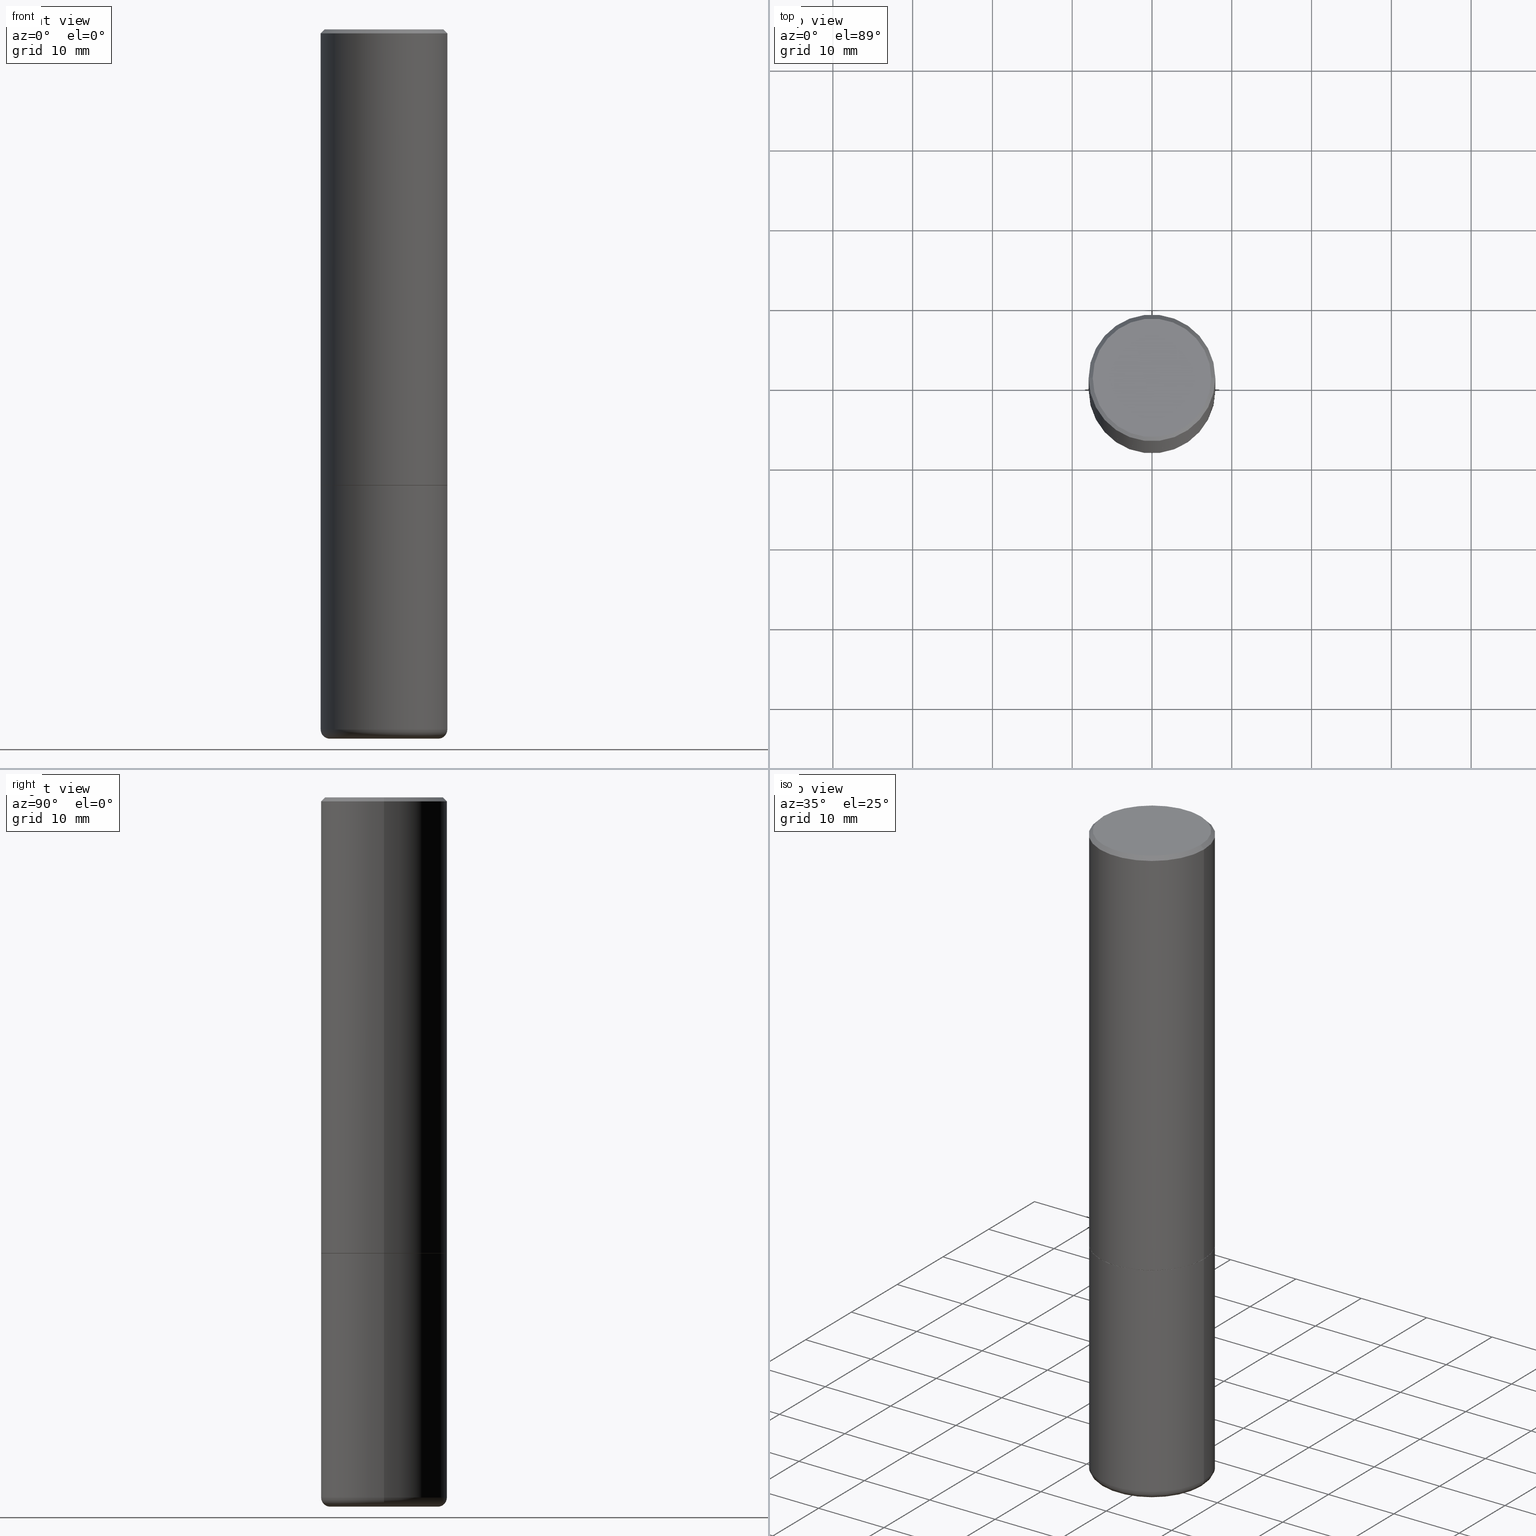
[diagram: canonical four-view strip — front | top / right | iso, engineering-drawing reading convention]
A machine part, canonical four-view strip (front | top / right | iso — engineering-drawing reading convention). The complete STEP part file that produces these views, byte-faithful:
ISO-10303-21;
HEADER;
FILE_DESCRIPTION (( 'STEP AP203' ),
    '1' );
FILE_NAME ('38140.STEP',
    '2023-03-22T20:23:03',
    ( '' ),
    ( '' ),
    'SwSTEP 2.0',
    'SolidWorks 2022',
    '' );
FILE_SCHEMA (( 'CONFIG_CONTROL_DESIGN' ));
ENDSEC;

DATA;
#1 = AXIS2_PLACEMENT_3D ( 'NONE', #51, #394, #88 ) ;
#2 = LOCAL_TIME ( 16, 23, 3.000000000000000000, #342 ) ;
#3 = CARTESIAN_POINT ( 'NONE',  ( -9.052604452908566159E-19, -1.217166826773992568E-14, -3.486104345547738514 ) ) ;
#4 = CARTESIAN_POINT ( 'NONE',  ( 0.3124999999999998335, -2.213735251080465334E-15, -0.02000000000000001776 ) ) ;
#5 = EDGE_CURVE ( 'NONE', #110, #46, #421, .T. ) ;
#6 = VECTOR ( 'NONE', #290, 39.37007874015748143 ) ;
#7 = DIRECTION ( 'NONE',  ( 1.000000000000000000, -6.982962677686265922E-15, 0.000000000000000000 ) ) ;
#8 = ADVANCED_BREP_SHAPE_REPRESENTATION ( '38140', ( #168, #23, #270 ), #197 ) ;
#9 = TOROIDAL_SURFACE ( 'NONE', #246, 0.2675000000000000155, 0.04499999999999999140 ) ;
#10 = ORIENTED_EDGE ( 'NONE', *, *, #229, .T. ) ;
#11 = CC_DESIGN_APPROVAL ( #188, ( #414 ) ) ;
#12 = CYLINDRICAL_SURFACE ( 'NONE', #232, 0.3124999999999998890 ) ;
#13 = ORIENTED_EDGE ( 'NONE', *, *, #148, .F. ) ;
#14 = DIRECTION ( 'NONE',  ( 1.000000000000000000, -6.982962677686266711E-15, 4.876176775795935232E-29 ) ) ;
#15 = VERTEX_POINT ( 'NONE', #436 ) ;
#16 = CARTESIAN_POINT ( 'NONE',  ( 1.048034588882512041E-27, -1.496315634977850062E-13, -42.85618308570521862 ) ) ;
#17 = ORIENTED_EDGE ( 'NONE', *, *, #302, .F. ) ;
#18 = VECTOR ( 'NONE', #379, 39.37007874015748143 ) ;
#19 = PERSON_AND_ORGANIZATION_ROLE ( 'classification_officer' ) ;
#20 = ORIENTED_EDGE ( 'NONE', *, *, #373, .T. ) ;
#21 = MECHANICAL_CONTEXT ( 'NONE', #355, 'mechanical' ) ;
#22 = ORIENTED_EDGE ( 'NONE', *, *, #165, .F. ) ;
#23 = MANIFOLD_SOLID_BREP ( 'Body-Move/Copy2[2]', #87 ) ;
#24 = LENGTH_MEASURE_WITH_UNIT ( LENGTH_MEASURE( 0.02539999999999999897 ), #263 );
#25 = FACE_OUTER_BOUND ( 'NONE', #80, .T. ) ;
#26 = CONICAL_SURFACE ( 'NONE', #1, 0.3114999999999999991, 0.7853981633972775267 ) ;
#27 = PLANE ( 'NONE',  #42 ) ;
#28 = ORIENTED_EDGE ( 'NONE', *, *, #383, .F. ) ;
#29 = CARTESIAN_POINT ( 'NONE',  ( 5.499859345110370619E-29, -7.852341531058232286E-15, -2.248999999999999222 ) ) ;
#30 = ADVANCED_FACE ( 'NONE', ( #162 ), #27, .F. ) ;
#31 = CIRCLE ( 'NONE', #217, 0.3125000000000000000 ) ;
#32 = CALENDAR_DATE ( 2023, 22, 3 ) ;
#33 = FACE_OUTER_BOUND ( 'NONE', #350, .T. ) ;
#34 = DIRECTION ( 'NONE',  ( -2.445468806185136597E-29, 3.491481338843145583E-15, 1.000000000000000000 ) ) ;
#35 = CARTESIAN_POINT ( 'NONE',  ( -0.3124999999999998335, 2.112346210000093866E-15, -0.02000000000000001776 ) ) ;
#36 = CONICAL_SURFACE ( 'NONE', #287, 0.3124999999999998335, 0.7853981633974476129 ) ;
#37 = CARTESIAN_POINT ( 'NONE',  ( 8.449245539719989979E-29, -1.206328334862541465E-14, -3.455061670936044216 ) ) ;
#38 = CARTESIAN_POINT ( 'NONE',  ( 4.890937612370276662E-31, -6.982962677686296539E-17, -0.02000000000000001776 ) ) ;
#39 = EDGE_LOOP ( 'NONE', ( #221, #48, #426, #223 ) ) ;
#40 = DIRECTION ( 'NONE',  ( -2.445468806185136597E-29, 3.491481338843145583E-15, 1.000000000000000000 ) ) ;
#41 = EDGE_CURVE ( 'NONE', #190, #110, #129, .T. ) ;
#42 = AXIS2_PLACEMENT_3D ( 'NONE', #198, #161, #336 ) ;
#43 = CIRCLE ( 'NONE', #96, 0.2924999999999998157 ) ;
#44 = DIRECTION ( 'NONE',  ( -2.445468806185136597E-29, 3.491481338843145583E-15, 1.000000000000000000 ) ) ;
#45 = ORIENTED_EDGE ( 'NONE', *, *, #91, .T. ) ;
#46 = VERTEX_POINT ( 'NONE', #156 ) ;
#47 = LINE ( 'NONE', #411, #224 ) ;
#48 = ORIENTED_EDGE ( 'NONE', *, *, #172, .T. ) ;
#49 = EDGE_CURVE ( 'NONE', #297, #419, #260, .T. ) ;
#50 = DATE_AND_TIME ( #259, #244 ) ;
#51 = CARTESIAN_POINT ( 'NONE',  ( 5.502304813916556222E-29, -7.855833012397076871E-15, -2.249999999999999556 ) ) ;
#52 = CONICAL_SURFACE ( 'NONE', #268, 0.3124999999999998335, 0.7853981633974476129 ) ;
#53 = APPROVAL_DATE_TIME ( #124, #314 ) ;
#54 = CARTESIAN_POINT ( 'NONE',  ( 4.890937612370276662E-31, -6.982962677686296539E-17, -0.02000000000000001776 ) ) ;
#55 = ADVANCED_FACE ( 'NONE', ( #233 ), #26, .T. ) ;
#56 = DIRECTION ( 'NONE',  ( -2.445468806185136597E-29, 3.491481338843145583E-15, 1.000000000000000000 ) ) ;
#57 = DATE_TIME_ROLE ( 'creation_date' ) ;
#58 = ORIENTED_EDGE ( 'NONE', *, *, #154, .F. ) ;
#59 = AXIS2_PLACEMENT_3D ( 'NONE', #405, #34, #442 ) ;
#60 = PERSON_AND_ORGANIZATION ( #330, #185 ) ;
#61 = DIRECTION ( 'NONE',  ( 1.000000000000000000, -6.982962677686266711E-15, 0.000000000000000000 ) ) ;
#62 = CARTESIAN_POINT ( 'NONE',  ( 0.3125000000000000000, -1.003451736783519063E-14, -2.248999999999999222 ) ) ;
#63 = EDGE_CURVE ( 'NONE', #77, #297, #294, .T. ) ;
#64 = CARTESIAN_POINT ( 'NONE',  ( 9.052604454613595791E-19, -1.217166826773992568E-14, -3.486104345547738514 ) ) ;
#65 = AXIS2_PLACEMENT_3D ( 'NONE', #29, #310, #101 ) ;
#66 = DIRECTION ( 'NONE',  ( -2.445468806185136597E-29, 3.491481338843145583E-15, 1.000000000000000000 ) ) ;
#67 = ADVANCED_FACE ( 'NONE', ( #25 ), #52, .T. ) ;
#68 = EDGE_CURVE ( 'NONE', #196, #419, #377, .T. ) ;
#69 = DIRECTION ( 'NONE',  ( 0.7071067811864267805, -2.468850131080992517E-15, 0.7071067811866682540 ) ) ;
#70 = CARTESIAN_POINT ( 'NONE',  ( 4.890937612370276662E-31, -6.982962677686296539E-17, -0.02000000000000001776 ) ) ;
#71 = CONICAL_SURFACE ( 'NONE', #324, 751.2258538476612557, 1.518436449235073260 ) ;
#72 = FACE_OUTER_BOUND ( 'NONE', #258, .T. ) ;
#73 = DIRECTION ( 'NONE',  ( -1.000000000000000000, 6.982962677686266711E-15, 0.000000000000000000 ) ) ;
#74 = ORIENTED_EDGE ( 'NONE', *, *, #172, .F. ) ;
#75 = APPROVAL ( #300, 'UNSPECIFIED' ) ;
#76 = CARTESIAN_POINT ( 'NONE',  ( -0.3125000000000000000, 2.220446049250313081E-15, -1.537167215704658232E-29 ) ) ;
#77 = VERTEX_POINT ( 'NONE', #331 ) ;
#78 = AXIS2_PLACEMENT_3D ( 'NONE', #274, #241, #171 ) ;
#79 = CARTESIAN_POINT ( 'NONE',  ( 0.3125000000000000000, -1.424545918540237458E-14, -3.455061670936044216 ) ) ;
#80 = EDGE_LOOP ( 'NONE', ( #269, #385, #182, #219 ) ) ;
#81 = DIRECTION ( 'NONE',  ( 2.445468806185136597E-29, -3.491481338843145583E-15, -1.000000000000000000 ) ) ;
#82 = ORIENTED_EDGE ( 'NONE', *, *, #433, .F. ) ;
#83 = PRODUCT_DEFINITION_SHAPE ( 'NONE', 'NONE',  #395 ) ;
#84 = CALENDAR_DATE ( 2023, 22, 3 ) ;
#85 = ORIENTED_EDGE ( 'NONE', *, *, #148, .T. ) ;
#86 = CARTESIAN_POINT ( 'NONE',  ( 0.000000000000000000, 0.000000000000000000, 0.000000000000000000 ) ) ;
#87 = CLOSED_SHELL ( 'NONE', ( #55, #328, #67, #353, #417, #194, #311, #348 ) ) ;
#88 = DIRECTION ( 'NONE',  ( 1.000000000000000000, -6.982962677686265922E-15, 0.000000000000000000 ) ) ;
#89 = AXIS2_PLACEMENT_3D ( 'NONE', #382, #346, #146 ) ;
#90 = APPROVAL_PERSON_ORGANIZATION ( #291, #188, #427 ) ;
#91 = EDGE_CURVE ( 'NONE', #187, #190, #139, .T. ) ;
#92 = CARTESIAN_POINT ( 'NONE',  ( 0.2675000000000000155, -1.393122586490649131E-14, -3.455061670936044216 ) ) ;
#93 = ORIENTED_EDGE ( 'NONE', *, *, #433, .T. ) ;
#94 = DIRECTION ( 'NONE',  ( 1.000000000000000000, -6.982962677686269077E-15, 4.883557194083114022E-29 ) ) ;
#95 = DIRECTION ( 'NONE',  ( -2.445468806185136877E-29, 3.491481338843145188E-15, 1.000000000000000000 ) ) ;
#96 = AXIS2_PLACEMENT_3D ( 'NONE', #372, #275, #98 ) ;
#97 = EDGE_CURVE ( 'NONE', #15, #297, #391, .T. ) ;
#98 = DIRECTION ( 'NONE',  ( 1.000000000000000000, -6.982962677686266711E-15, 4.876067333457692840E-29 ) ) ;
#99 = DATE_TIME_ROLE ( 'classification_date' ) ;
#100 = CARTESIAN_POINT ( 'NONE',  ( 0.2924999999999998157, -2.110215457714318748E-15, 4.268512490114932791E-18 ) ) ;
#101 = DIRECTION ( 'NONE',  ( 1.000000000000000000, -6.982962677686269077E-15, 0.000000000000000000 ) ) ;
#102 = AXIS2_PLACEMENT_3D ( 'NONE', #250, #211, #384 ) ;
#103 = CARTESIAN_POINT ( 'NONE',  ( 5.499859345110370619E-29, -7.852341531058232286E-15, -2.248999999999999222 ) ) ;
#104 = CARTESIAN_POINT ( 'NONE',  ( -0.2651448819690678804, -1.008952714362760311E-14, -3.500000000000000000 ) ) ;
#105 = FACE_OUTER_BOUND ( 'NONE', #39, .T. ) ;
#106 = DESIGN_CONTEXT ( 'detailed design', #138, 'design' ) ;
#107 = CIRCLE ( 'NONE', #362, 0.2651448819690678804 ) ;
#108 = CYLINDRICAL_SURFACE ( 'NONE', #309, 0.3125000000000000000 ) ;
#109 = EDGE_CURVE ( 'NONE', #297, #15, #438, .T. ) ;
#110 = VERTEX_POINT ( 'NONE', #406 ) ;
#111 = DIRECTION ( 'NONE',  ( 2.445468806185136597E-29, -3.491481338843145583E-15, -1.000000000000000000 ) ) ;
#112 = ORIENTED_EDGE ( 'NONE', *, *, #249, .F. ) ;
#113 = CARTESIAN_POINT ( 'NONE',  ( 5.502304813916556222E-29, -7.855833012397076871E-15, -2.249999999999999556 ) ) ;
#114 = ORIENTED_EDGE ( 'NONE', *, *, #118, .T. ) ;
#115 = CC_DESIGN_DATE_AND_TIME_ASSIGNMENT ( #366, #99, ( #430 ) ) ;
#116 = VECTOR ( 'NONE', #69, 39.37007874015748143 ) ;
#117 = DIRECTION ( 'NONE',  ( 1.000000000000000000, -6.982962677686265133E-15, 0.000000000000000000 ) ) ;
#118 = EDGE_CURVE ( 'NONE', #356, #289, #242, .T. ) ;
#119 = APPROVAL_STATUS ( 'not_yet_approved' ) ;
#120 = ORIENTED_EDGE ( 'NONE', *, *, #41, .T. ) ;
#121 = COORDINATED_UNIVERSAL_TIME_OFFSET ( 5, 0, .BEHIND. ) ;
#122 = ORIENTED_EDGE ( 'NONE', *, *, #118, .F. ) ;
#123 = CIRCLE ( 'NONE', #176, 0.04499999999999999833 ) ;
#124 = DATE_AND_TIME ( #84, #136 ) ;
#125 = ORIENTED_EDGE ( 'NONE', *, *, #178, .F. ) ;
#126 = EDGE_LOOP ( 'NONE', ( #334, #145, #267, #358 ) ) ;
#127 = EDGE_CURVE ( 'NONE', #265, #213, #43, .T. ) ;
#128 = CC_DESIGN_SECURITY_CLASSIFICATION ( #430, ( #414 ) ) ;
#129 = LINE ( 'NONE', #299, #6 ) ;
#130 = AXIS2_PLACEMENT_3D ( 'NONE', #349, #357, #7 ) ;
#131 = CC_DESIGN_APPROVAL ( #75, ( #430 ) ) ;
#132 = CARTESIAN_POINT ( 'NONE',  ( 8.559140821647976968E-29, -1.222018468595100934E-14, -3.500000000000000000 ) ) ;
#133 = DIRECTION ( 'NONE',  ( 1.000000000000000000, -6.982962677686269077E-15, 0.000000000000000000 ) ) ;
#134 = CARTESIAN_POINT ( 'NONE',  ( 0.3114999999999999991, -1.003102588649634920E-14, -2.249999999999999556 ) ) ;
#135 = AXIS2_PLACEMENT_3D ( 'NONE', #399, #228, #192 ) ;
#136 = LOCAL_TIME ( 16, 23, 3.000000000000000000, #296 ) ;
#137 = DIRECTION ( 'NONE',  ( -2.445468806185136597E-29, 3.491481338843145583E-15, 1.000000000000000000 ) ) ;
#138 = APPLICATION_CONTEXT ( 'configuration controlled 3d designs of mechanical parts and assemblies' ) ;
#139 = LINE ( 'NONE', #208, #116 ) ;
#140 = CC_DESIGN_PERSON_AND_ORGANIZATION_ASSIGNMENT ( #393, #19, ( #430 ) ) ;
#141 = DIRECTION ( 'NONE',  ( 0.7071067811865469066, -7.319954787623252890E-15, -0.7071067811865479058 ) ) ;
#142 = EDGE_LOOP ( 'NONE', ( #20, #180, #125, #151 ) ) ;
#143 = CONICAL_SURFACE ( 'NONE', #239, 751.2258538476612557, 1.518436449235073260 ) ;
#144 = DIRECTION ( 'NONE',  ( -2.445468806185136597E-29, 3.491481338843145583E-15, 1.000000000000000000 ) ) ;
#145 = ORIENTED_EDGE ( 'NONE', *, *, #209, .F. ) ;
#146 = DIRECTION ( 'NONE',  ( -1.000000000000000000, 6.982962677686265922E-15, -4.876176775795935793E-29 ) ) ;
#147 = VERTEX_POINT ( 'NONE', #340 ) ;
#148 = EDGE_CURVE ( 'NONE', #367, #190, #170, .T. ) ;
#149 = CARTESIAN_POINT ( 'NONE',  ( 0.000000000000000000, 0.000000000000000000, 0.000000000000000000 ) ) ;
#150 = ORIENTED_EDGE ( 'NONE', *, *, #97, .T. ) ;
#151 = ORIENTED_EDGE ( 'NONE', *, *, #91, .F. ) ;
#152 = DIRECTION ( 'NONE',  ( 1.000000000000000000, 0.000000000000000000, 0.000000000000000000 ) ) ;
#153 = EDGE_LOOP ( 'NONE', ( #327, #230, #251, #184 ) ) ;
#154 = EDGE_CURVE ( 'NONE', #46, #110, #317, .T. ) ;
#155 = COORDINATED_UNIVERSAL_TIME_OFFSET ( 5, 0, .BEHIND. ) ;
#156 = CARTESIAN_POINT ( 'NONE',  ( -0.3124999999999998335, 2.112346210000093866E-15, -0.02000000000000001776 ) ) ;
#157 = APPLICATION_PROTOCOL_DEFINITION ( 'international standard', 'config_control_design', 1994, #138 ) ;
#158 = AXIS2_PLACEMENT_3D ( 'NONE', #277, #344, #133 ) ;
#159 = EDGE_LOOP ( 'NONE', ( #323, #285, #390, #369 ) ) ;
#160 = APPROVAL_DATE_TIME ( #50, #188 ) ;
#161 = DIRECTION ( 'NONE',  ( 2.438088387897960049E-29, -3.491481338843145188E-15, -1.000000000000000000 ) ) ;
#162 = FACE_OUTER_BOUND ( 'NONE', #175, .T. ) ;
#163 = LINE ( 'NONE', #64, #407 ) ;
#164 = CIRCLE ( 'NONE', #78, 0.3114999999999999991 ) ;
#165 = EDGE_CURVE ( 'NONE', #147, #187, #164, .T. ) ;
#166 = DIRECTION ( 'NONE',  ( -2.445468806185136597E-29, 3.491481338843145583E-15, 1.000000000000000000 ) ) ;
#167 = DIRECTION ( 'NONE',  ( 1.000000000000000000, -6.982962677686269077E-15, 0.000000000000000000 ) ) ;
#168 = MANIFOLD_SOLID_BREP ( 'Body-Move/Copy2[1]', #338 ) ;
#169 = DIRECTION ( 'NONE',  ( -0.7071067811865469066, 2.468850131082251144E-15, -0.7071067811865479058 ) ) ;
#170 = CIRCLE ( 'NONE', #245, 0.3125000000000000000 ) ;
#171 = DIRECTION ( 'NONE',  ( 1.000000000000000000, -6.982962677686265922E-15, 0.000000000000000000 ) ) ;
#172 = EDGE_CURVE ( 'NONE', #367, #46, #200, .T. ) ;
#173 = PLANE ( 'NONE',  #89 ) ;
#174 = FACE_OUTER_BOUND ( 'NONE', #321, .T. ) ;
#175 = EDGE_LOOP ( 'NONE', ( #319, #387 ) ) ;
#176 = AXIS2_PLACEMENT_3D ( 'NONE', #409, #236, #343 ) ;
#177 = VECTOR ( 'NONE', #169, 39.37007874015748854 ) ;
#178 = EDGE_CURVE ( 'NONE', #190, #367, #333, .T. ) ;
#179 = CARTESIAN_POINT ( 'NONE',  ( 8.525791572133809270E-29, -1.217076300729454949E-14, -3.486104345547738514 ) ) ;
#180 = ORIENTED_EDGE ( 'NONE', *, *, #302, .T. ) ;
#181 = CARTESIAN_POINT ( 'NONE',  ( 0.000000000000000000, 0.000000000000000000, 0.000000000000000000 ) ) ;
#182 = ORIENTED_EDGE ( 'NONE', *, *, #5, .T. ) ;
#183 = DIRECTION ( 'NONE',  ( -0.7071067811864267805, 7.493145998869918709E-15, 0.7071067811866682540 ) ) ;
#184 = ORIENTED_EDGE ( 'NONE', *, *, #49, .F. ) ;
#185 = ORGANIZATION ( 'UNSPECIFIED', 'UNSPECIFIED', '' ) ;
#186 = PERSON_AND_ORGANIZATION_ROLE ( 'creator' ) ;
#187 = VERTEX_POINT ( 'NONE', #134 ) ;
#188 = APPROVAL ( #359, 'UNSPECIFIED' ) ;
#189 = DIRECTION ( 'NONE',  ( 1.000000000000000000, -6.982962677686266711E-15, 0.000000000000000000 ) ) ;
#190 = VERTEX_POINT ( 'NONE', #62 ) ;
#191 =( NAMED_UNIT ( * ) SI_UNIT ( $, .STERADIAN. ) SOLID_ANGLE_UNIT ( ) );
#192 = DIRECTION ( 'NONE',  ( 1.000000000000000000, -6.982962677686265133E-15, 0.000000000000000000 ) ) ;
#193 = DIRECTION ( 'NONE',  ( -2.445468806185136597E-29, 3.491481338843145583E-15, 1.000000000000000000 ) ) ;
#194 = ADVANCED_FACE ( 'NONE', ( #33 ), #280, .T. ) ;
#195 = AXIS2_PLACEMENT_3D ( 'NONE', #238, #166, #337 ) ;
#196 = VERTEX_POINT ( 'NONE', #378 ) ;
#197 =( GEOMETRIC_REPRESENTATION_CONTEXT ( 3 ) GLOBAL_UNCERTAINTY_ASSIGNED_CONTEXT ( ( #428 ) ) GLOBAL_UNIT_ASSIGNED_CONTEXT ( ( #231, #398, #191 ) ) REPRESENTATION_CONTEXT ( 'NONE', 'WORKASPACE' ) );
#198 = CARTESIAN_POINT ( 'NONE',  ( 2.182175836777013173E-15, 0.3124999999999921729, -2.250000000000000444 ) ) ;
#199 = DATE_AND_TIME ( #32, #2 ) ;
#200 = LINE ( 'NONE', #207, #18 ) ;
#201 = PERSON_AND_ORGANIZATION ( #330, #185 ) ;
#202 = DIRECTION ( 'NONE',  ( 1.000000000000000000, -6.982962677686269077E-15, 0.000000000000000000 ) ) ;
#203 = AXIS2_PLACEMENT_3D ( 'NONE', #54, #56, #61 ) ;
#204 = CIRCLE ( 'NONE', #381, 0.2651448819690678804 ) ;
#205 = SHAPE_DEFINITION_REPRESENTATION ( #83, #8 ) ;
#206 = CARTESIAN_POINT ( 'NONE',  ( -0.2924999999999998157, 2.077431396611662611E-15, 4.268512490086005323E-18 ) ) ;
#207 = CARTESIAN_POINT ( 'NONE',  ( -0.3124999999999998890, 2.220446049250312292E-15, -1.537167215704657391E-29 ) ) ;
#208 = CARTESIAN_POINT ( 'NONE',  ( 0.3114999999999999991, -1.003102588649634920E-14, -2.249999999999999556 ) ) ;
#209 = EDGE_CURVE ( 'NONE', #213, #265, #303, .T. ) ;
#210 = AXIS2_PLACEMENT_3D ( 'NONE', #92, #293, #264 ) ;
#211 = DIRECTION ( 'NONE',  ( -2.445468806185136597E-29, 3.491481338843145583E-15, 1.000000000000000000 ) ) ;
#212 = FACE_OUTER_BOUND ( 'NONE', #371, .T. ) ;
#213 = VERTEX_POINT ( 'NONE', #206 ) ;
#214 = CC_DESIGN_PERSON_AND_ORGANIZATION_ASSIGNMENT ( #298, #186, ( #414 ) ) ;
#215 = CARTESIAN_POINT ( 'NONE',  ( 8.449245539719989979E-29, -1.206328334862541465E-14, -3.455061670936044216 ) ) ;
#216 = ORIENTED_EDGE ( 'NONE', *, *, #97, .F. ) ;
#217 = AXIS2_PLACEMENT_3D ( 'NONE', #392, #40, #117 ) ;
#218 = DIRECTION ( 'NONE',  ( 1.000000000000000000, -6.982962677686266711E-15, 4.876176775795935232E-29 ) ) ;
#219 = ORIENTED_EDGE ( 'NONE', *, *, #283, .F. ) ;
#220 = DIRECTION ( 'NONE',  ( -1.000000000000000000, 6.982962677686266711E-15, 0.000000000000000000 ) ) ;
#221 = ORIENTED_EDGE ( 'NONE', *, *, #178, .T. ) ;
#222 = PERSON_AND_ORGANIZATION_ROLE ( 'creator' ) ;
#223 = ORIENTED_EDGE ( 'NONE', *, *, #41, .F. ) ;
#224 = VECTOR ( 'NONE', #183, 39.37007874015748143 ) ;
#225 = APPROVAL_PERSON_ORGANIZATION ( #60, #314, #363 ) ;
#226 = CARTESIAN_POINT ( 'NONE',  ( 4.890937612370276662E-31, -6.982962677686296539E-17, -0.02000000000000001776 ) ) ;
#227 = CALENDAR_DATE ( 2023, 22, 3 ) ;
#228 = DIRECTION ( 'NONE',  ( -2.445468806185136597E-29, 3.491481338843145583E-15, 1.000000000000000000 ) ) ;
#229 = EDGE_CURVE ( 'NONE', #356, #77, #163, .T. ) ;
#230 = ORIENTED_EDGE ( 'NONE', *, *, #383, .T. ) ;
#231 =( CONVERSION_BASED_UNIT ( 'INCH', #24 ) LENGTH_UNIT ( ) NAMED_UNIT ( #254 ) );
#232 = AXIS2_PLACEMENT_3D ( 'NONE', #181, #243, #218 ) ;
#233 = FACE_OUTER_BOUND ( 'NONE', #142, .T. ) ;
#234 = DIRECTION ( 'NONE',  ( -2.445468806185136597E-29, 3.491481338843145583E-15, 1.000000000000000000 ) ) ;
#235 = APPROVAL_ROLE ( '' ) ;
#236 = DIRECTION ( 'NONE',  ( 7.105427357601001859E-15, 1.000000000000000000, -3.491481338843145583E-15 ) ) ;
#237 = CC_DESIGN_PERSON_AND_ORGANIZATION_ASSIGNMENT ( #266, #326, ( #414 ) ) ;
#238 = CARTESIAN_POINT ( 'NONE',  ( 5.502304813916556222E-29, -7.855833012397076871E-15, -2.249999999999999556 ) ) ;
#239 = AXIS2_PLACEMENT_3D ( 'NONE', #354, #312, #220 ) ;
#240 = LOCAL_TIME ( 16, 23, 3.000000000000000000, #121 ) ;
#241 = DIRECTION ( 'NONE',  ( -2.445468806185136597E-29, 3.491481338843145583E-15, 1.000000000000000000 ) ) ;
#242 = LINE ( 'NONE', #3, #262 ) ;
#243 = DIRECTION ( 'NONE',  ( -2.445468806185136597E-29, 3.491481338843145583E-15, 1.000000000000000000 ) ) ;
#244 = LOCAL_TIME ( 16, 23, 3.000000000000000000, #434 ) ;
#245 = AXIS2_PLACEMENT_3D ( 'NONE', #103, #304, #167 ) ;
#246 = AXIS2_PLACEMENT_3D ( 'NONE', #215, #44, #94 ) ;
#247 = CARTESIAN_POINT ( 'NONE',  ( -0.3125000000000000000, -1.740639529667232739E-15, -2.248999999999999222 ) ) ;
#248 = EDGE_LOOP ( 'NONE', ( #313, #22 ) ) ;
#249 = EDGE_CURVE ( 'NONE', #77, #289, #107, .T. ) ;
#250 = CARTESIAN_POINT ( 'NONE',  ( 8.449245539719989979E-29, -1.206328334862541465E-14, -3.455061670936044216 ) ) ;
#251 = ORIENTED_EDGE ( 'NONE', *, *, #307, .F. ) ;
#252 = DIRECTION ( 'NONE',  ( -2.445468806185136877E-29, 3.491481338843145188E-15, 1.000000000000000000 ) ) ;
#253 = ORIENTED_EDGE ( 'NONE', *, *, #49, .T. ) ;
#254 = DIMENSIONAL_EXPONENTS ( 1.000000000000000000, 0.000000000000000000, 0.000000000000000000, 0.000000000000000000, 0.000000000000000000, 0.000000000000000000, 0.000000000000000000 ) ;
#255 = AXIS2_PLACEMENT_3D ( 'NONE', #37, #404, #202 ) ;
#256 = DIRECTION ( 'NONE',  ( 1.000000000000000000, -6.982962677686266711E-15, 4.876176775795936353E-29 ) ) ;
#257 = APPLICATION_PROTOCOL_DEFINITION ( 'international standard', 'config_control_design', 1994, #355 ) ;
#258 = EDGE_LOOP ( 'NONE', ( #28, #150, #253, #329 ) ) ;
#259 = CALENDAR_DATE ( 2023, 22, 3 ) ;
#260 = LINE ( 'NONE', #360, #332 ) ;
#261 = ADVANCED_FACE ( 'NONE', ( #441 ), #341, .T. ) ;
#262 = VECTOR ( 'NONE', #306, 39.37007874015748854 ) ;
#263 =( LENGTH_UNIT ( ) NAMED_UNIT ( * ) SI_UNIT ( $, .METRE. ) );
#264 = DIRECTION ( 'NONE',  ( 1.000000000000000000, -6.982962677686269077E-15, 0.000000000000000000 ) ) ;
#265 = VERTEX_POINT ( 'NONE', #100 ) ;
#266 = PERSON_AND_ORGANIZATION ( #330, #185 ) ;
#267 = ORIENTED_EDGE ( 'NONE', *, *, #283, .T. ) ;
#268 = AXIS2_PLACEMENT_3D ( 'NONE', #226, #364, #429 ) ;
#269 = ORIENTED_EDGE ( 'NONE', *, *, #127, .F. ) ;
#270 = AXIS2_PLACEMENT_3D ( 'NONE', #86, #431, #152 ) ;
#271 = APPROVAL_DATE_TIME ( #199, #75 ) ;
#272 = CC_DESIGN_PERSON_AND_ORGANIZATION_ASSIGNMENT ( #423, #425, ( #361 ) ) ;
#273 = DIRECTION ( 'NONE',  ( 1.000000000000000000, -6.982962677686266711E-15, 0.000000000000000000 ) ) ;
#274 = CARTESIAN_POINT ( 'NONE',  ( 5.502304813916556222E-29, -7.855833012397076871E-15, -2.249999999999999556 ) ) ;
#275 = DIRECTION ( 'NONE',  ( -2.445468806185136597E-29, 3.491481338843145583E-15, 1.000000000000000000 ) ) ;
#276 = EDGE_CURVE ( 'NONE', #289, #15, #123, .T. ) ;
#277 = CARTESIAN_POINT ( 'NONE',  ( 8.449245539719989979E-29, -1.206328334862541465E-14, -3.455061670936044216 ) ) ;
#278 = DIRECTION ( 'NONE',  ( -2.438088387897960049E-29, 3.491481338843145188E-15, 1.000000000000000000 ) ) ;
#279 = CYLINDRICAL_SURFACE ( 'NONE', #397, 0.3124999999999998890 ) ;
#280 = CONICAL_SURFACE ( 'NONE', #195, 0.3114999999999999991, 0.7853981633972775267 ) ;
#281 = FACE_OUTER_BOUND ( 'NONE', #347, .T. ) ;
#282 = LINE ( 'NONE', #4, #339 ) ;
#283 = EDGE_CURVE ( 'NONE', #213, #46, #374, .T. ) ;
#284 = FACE_OUTER_BOUND ( 'NONE', #126, .T. ) ;
#285 = ORIENTED_EDGE ( 'NONE', *, *, #276, .T. ) ;
#286 = ADVANCED_FACE ( 'NONE', ( #308 ), #413, .T. ) ;
#287 = AXIS2_PLACEMENT_3D ( 'NONE', #38, #81, #420 ) ;
#288 = DATE_AND_TIME ( #368, #437 ) ;
#289 = VERTEX_POINT ( 'NONE', #104 ) ;
#290 = DIRECTION ( 'NONE',  ( -2.445468806185136877E-29, 3.491481338843145188E-15, 1.000000000000000000 ) ) ;
#291 = PERSON_AND_ORGANIZATION ( #330, #185 ) ;
#292 = ADVANCED_FACE ( 'NONE', ( #72 ), #108, .T. ) ;
#293 = DIRECTION ( 'NONE',  ( -6.982962677686266711E-15, -1.000000000000000000, 3.491481338843145583E-15 ) ) ;
#294 = CIRCLE ( 'NONE', #210, 0.04499999999999999833 ) ;
#295 = AXIS2_PLACEMENT_3D ( 'NONE', #70, #234, #380 ) ;
#296 = COORDINATED_UNIVERSAL_TIME_OFFSET ( 5, 0, .BEHIND. ) ;
#297 = VERTEX_POINT ( 'NONE', #79 ) ;
#298 = PERSON_AND_ORGANIZATION ( #330, #185 ) ;
#299 = CARTESIAN_POINT ( 'NONE',  ( 0.3124999999999998890, -2.182175836776957558E-15, 1.523805242436229235E-29 ) ) ;
#300 = APPROVAL_STATUS ( 'not_yet_approved' ) ;
#301 = ORIENTED_EDGE ( 'NONE', *, *, #165, .T. ) ;
#302 = EDGE_CURVE ( 'NONE', #147, #367, #47, .T. ) ;
#303 = CIRCLE ( 'NONE', #376, 0.2924999999999998157 ) ;
#304 = DIRECTION ( 'NONE',  ( -2.445468806185136597E-29, 3.491481338843145583E-15, 1.000000000000000000 ) ) ;
#305 = DIRECTION ( 'NONE',  ( 1.000000000000000000, -6.982962677686266711E-15, 4.876067333457692840E-29 ) ) ;
#306 = DIRECTION ( 'NONE',  ( -0.9986295347545742773, 6.790662755453664522E-15, -0.05233595624293731902 ) ) ;
#307 = EDGE_CURVE ( 'NONE', #419, #196, #31, .T. ) ;
#308 = FACE_OUTER_BOUND ( 'NONE', #159, .T. ) ;
#309 = AXIS2_PLACEMENT_3D ( 'NONE', #149, #386, #256 ) ;
#310 = DIRECTION ( 'NONE',  ( -2.445468806185136597E-29, 3.491481338843145583E-15, 1.000000000000000000 ) ) ;
#311 = ADVANCED_FACE ( 'NONE', ( #322 ), #389, .F. ) ;
#312 = DIRECTION ( 'NONE',  ( 2.445468806185136597E-29, -3.491481338843145583E-15, -1.000000000000000000 ) ) ;
#313 = ORIENTED_EDGE ( 'NONE', *, *, #373, .F. ) ;
#314 = APPROVAL ( #119, 'UNSPECIFIED' ) ;
#315 = FACE_OUTER_BOUND ( 'NONE', #402, .T. ) ;
#316 = ORIENTED_EDGE ( 'NONE', *, *, #209, .T. ) ;
#317 = CIRCLE ( 'NONE', #295, 0.3124999999999998335 ) ;
#318 = FACE_OUTER_BOUND ( 'NONE', #435, .T. ) ;
#319 = ORIENTED_EDGE ( 'NONE', *, *, #307, .T. ) ;
#320 = CARTESIAN_POINT ( 'NONE',  ( 0.000000000000000000, 0.000000000000000000, 0.000000000000000000 ) ) ;
#321 = EDGE_LOOP ( 'NONE', ( #316, #400 ) ) ;
#322 = FACE_OUTER_BOUND ( 'NONE', #248, .T. ) ;
#323 = ORIENTED_EDGE ( 'NONE', *, *, #249, .T. ) ;
#324 = AXIS2_PLACEMENT_3D ( 'NONE', #16, #111, #73 ) ;
#325 = CC_DESIGN_APPROVAL ( #314, ( #395 ) ) ;
#326 = PERSON_AND_ORGANIZATION_ROLE ( 'design_supplier' ) ;
#327 = ORIENTED_EDGE ( 'NONE', *, *, #109, .T. ) ;
#328 = ADVANCED_FACE ( 'NONE', ( #105 ), #12, .T. ) ;
#329 = ORIENTED_EDGE ( 'NONE', *, *, #68, .F. ) ;
#330 = PERSON ( 'UNSPECIFIED', 'UNSPECIFIED', 'UNSPECIFIED', ('UNSPECIFIED'), ('UNSPECIFIED'), ('UNSPECIFIED') ) ;
#331 = CARTESIAN_POINT ( 'NONE',  ( 0.2651448819690678804, -1.407168150092053958E-14, -3.500000000000000000 ) ) ;
#332 = VECTOR ( 'NONE', #95, 39.37007874015748143 ) ;
#333 = CIRCLE ( 'NONE', #65, 0.3125000000000000000 ) ;
#334 = ORIENTED_EDGE ( 'NONE', *, *, #375, .F. ) ;
#335 = PERSON_AND_ORGANIZATION ( #330, #185 ) ;
#336 = DIRECTION ( 'NONE',  ( -1.000000000000000000, 6.982962677686265922E-15, -4.876176775795935793E-29 ) ) ;
#337 = DIRECTION ( 'NONE',  ( 1.000000000000000000, -6.982962677686265922E-15, 0.000000000000000000 ) ) ;
#338 = CLOSED_SHELL ( 'NONE', ( #370, #286, #261, #30, #292, #424, #365 ) ) ;
#339 = VECTOR ( 'NONE', #141, 39.37007874015748854 ) ;
#340 = CARTESIAN_POINT ( 'NONE',  ( -0.3114999999999999991, -5.637193936156142396E-15, -2.249999999999999556 ) ) ;
#341 = CYLINDRICAL_SURFACE ( 'NONE', #59, 0.3125000000000000000 ) ;
#342 = COORDINATED_UNIVERSAL_TIME_OFFSET ( 5, 0, .BEHIND. ) ;
#343 = DIRECTION ( 'NONE',  ( -1.000000000000000000, 7.105427357600990815E-15, 0.000000000000000000 ) ) ;
#344 = DIRECTION ( 'NONE',  ( -2.445468806185136597E-29, 3.491481338843145583E-15, 1.000000000000000000 ) ) ;
#345 = APPROVAL_PERSON_ORGANIZATION ( #201, #75, #235 ) ;
#346 = DIRECTION ( 'NONE',  ( 2.438088387897960049E-29, -3.491481338843145188E-15, -1.000000000000000000 ) ) ;
#347 = EDGE_LOOP ( 'NONE', ( #352, #93, #432, #216 ) ) ;
#348 = ADVANCED_FACE ( 'NONE', ( #174 ), #173, .F. ) ;
#349 = CARTESIAN_POINT ( 'NONE',  ( 5.502304813916556222E-29, -7.855833012397076871E-15, -2.249999999999999556 ) ) ;
#350 = EDGE_LOOP ( 'NONE', ( #17, #301, #45, #13 ) ) ;
#351 = DIRECTION ( 'NONE',  ( 1.000000000000000000, -6.982962677686265922E-15, 4.876176775795935793E-29 ) ) ;
#352 = ORIENTED_EDGE ( 'NONE', *, *, #276, .F. ) ;
#353 = ADVANCED_FACE ( 'NONE', ( #284 ), #36, .T. ) ;
#354 = CARTESIAN_POINT ( 'NONE',  ( 1.048034588882512041E-27, -1.496315634977850062E-13, -42.85618308570521862 ) ) ;
#355 = APPLICATION_CONTEXT ( 'configuration controlled 3d designs of mechanical parts and assemblies' ) ;
#356 = VERTEX_POINT ( 'NONE', #179 ) ;
#357 = DIRECTION ( 'NONE',  ( -2.445468806185136597E-29, 3.491481338843145583E-15, 1.000000000000000000 ) ) ;
#358 = ORIENTED_EDGE ( 'NONE', *, *, #154, .T. ) ;
#359 = APPROVAL_STATUS ( 'not_yet_approved' ) ;
#360 = CARTESIAN_POINT ( 'NONE',  ( 0.3125000000000000000, -2.182175836776958347E-15, 1.523805242436230075E-29 ) ) ;
#361 = PRODUCT ( '38140', '38140', '', ( #21 ) ) ;
#362 = AXIS2_PLACEMENT_3D ( 'NONE', #132, #137, #273 ) ;
#363 = APPROVAL_ROLE ( '' ) ;
#364 = DIRECTION ( 'NONE',  ( 2.445468806185136597E-29, -3.491481338843145583E-15, -1.000000000000000000 ) ) ;
#365 = ADVANCED_FACE ( 'NONE', ( #212 ), #143, .F. ) ;
#366 = DATE_AND_TIME ( #227, #240 ) ;
#367 = VERTEX_POINT ( 'NONE', #247 ) ;
#368 = CALENDAR_DATE ( 2023, 22, 3 ) ;
#369 = ORIENTED_EDGE ( 'NONE', *, *, #63, .F. ) ;
#370 = ADVANCED_FACE ( 'NONE', ( #315 ), #71, .F. ) ;
#371 = EDGE_LOOP ( 'NONE', ( #416, #114, #112 ) ) ;
#372 = CARTESIAN_POINT ( 'NONE',  ( -1.043851414335219820E-46, 1.490343170380447200E-32, 4.268512490100411279E-18 ) ) ;
#373 = EDGE_CURVE ( 'NONE', #187, #147, #403, .T. ) ;
#374 = LINE ( 'NONE', #35, #177 ) ;
#375 = EDGE_CURVE ( 'NONE', #265, #110, #282, .T. ) ;
#376 = AXIS2_PLACEMENT_3D ( 'NONE', #408, #66, #305 ) ;
#377 = CIRCLE ( 'NONE', #135, 0.3125000000000000000 ) ;
#378 = CARTESIAN_POINT ( 'NONE',  ( -0.3125000000000000000, -7.739112131260931893E-15, -2.249999999999999556 ) ) ;
#379 = DIRECTION ( 'NONE',  ( -2.445468806185136877E-29, 3.491481338843145188E-15, 1.000000000000000000 ) ) ;
#380 = DIRECTION ( 'NONE',  ( 1.000000000000000000, -6.982962677686266711E-15, 0.000000000000000000 ) ) ;
#381 = AXIS2_PLACEMENT_3D ( 'NONE', #415, #193, #189 ) ;
#382 = CARTESIAN_POINT ( 'NONE',  ( 2.042516583223231356E-15, 0.2924999999999998157, -1.019124035366569212E-15 ) ) ;
#383 = EDGE_CURVE ( 'NONE', #15, #196, #418, .T. ) ;
#384 = DIRECTION ( 'NONE',  ( 1.000000000000000000, -6.982962677686269077E-15, 4.883557194083114022E-29 ) ) ;
#385 = ORIENTED_EDGE ( 'NONE', *, *, #375, .T. ) ;
#386 = DIRECTION ( 'NONE',  ( -2.445468806185136597E-29, 3.491481338843145583E-15, 1.000000000000000000 ) ) ;
#387 = ORIENTED_EDGE ( 'NONE', *, *, #68, .T. ) ;
#388 = CC_DESIGN_DATE_AND_TIME_ASSIGNMENT ( #288, #57, ( #395 ) ) ;
#389 = PLANE ( 'NONE',  #422 ) ;
#390 = ORIENTED_EDGE ( 'NONE', *, *, #109, .F. ) ;
#391 = CIRCLE ( 'NONE', #158, 0.3125000000000000000 ) ;
#392 = CARTESIAN_POINT ( 'NONE',  ( 5.502304813916556222E-29, -7.855833012397075293E-15, -2.249999999999999556 ) ) ;
#393 = PERSON_AND_ORGANIZATION ( #330, #185 ) ;
#394 = DIRECTION ( 'NONE',  ( -2.445468806185136597E-29, 3.491481338843145583E-15, 1.000000000000000000 ) ) ;
#395 = PRODUCT_DEFINITION ( 'UNKNOWN', '', #414, #106 ) ;
#396 = VECTOR ( 'NONE', #252, 39.37007874015748143 ) ;
#397 = AXIS2_PLACEMENT_3D ( 'NONE', #320, #144, #14 ) ;
#398 =( NAMED_UNIT ( * ) PLANE_ANGLE_UNIT ( ) SI_UNIT ( $, .RADIAN. ) );
#399 = CARTESIAN_POINT ( 'NONE',  ( 5.502304813916556222E-29, -7.855833012397075293E-15, -2.249999999999999556 ) ) ;
#400 = ORIENTED_EDGE ( 'NONE', *, *, #127, .T. ) ;
#401 = SECURITY_CLASSIFICATION_LEVEL ( 'unclassified' ) ;
#402 = EDGE_LOOP ( 'NONE', ( #122, #10, #82 ) ) ;
#403 = CIRCLE ( 'NONE', #130, 0.3114999999999999991 ) ;
#404 = DIRECTION ( 'NONE',  ( -2.445468806185136597E-29, 3.491481338843145583E-15, 1.000000000000000000 ) ) ;
#405 = CARTESIAN_POINT ( 'NONE',  ( 0.000000000000000000, 0.000000000000000000, 0.000000000000000000 ) ) ;
#406 = CARTESIAN_POINT ( 'NONE',  ( 0.3124999999999998335, -2.213735251080465334E-15, -0.02000000000000001776 ) ) ;
#407 = VECTOR ( 'NONE', #439, 39.37007874015748854 ) ;
#408 = CARTESIAN_POINT ( 'NONE',  ( -1.043851414335219820E-46, 1.490343170380447200E-32, 4.268512490100411279E-18 ) ) ;
#409 = CARTESIAN_POINT ( 'NONE',  ( -0.2675000000000000155, -1.016258153046714615E-14, -3.455061670936044216 ) ) ;
#410 = CC_DESIGN_PERSON_AND_ORGANIZATION_ASSIGNMENT ( #335, #222, ( #395 ) ) ;
#411 = CARTESIAN_POINT ( 'NONE',  ( -0.3114999999999999991, -5.642492390504364798E-15, -2.249999999999999556 ) ) ;
#412 = CARTESIAN_POINT ( 'NONE',  ( 0.3125000000000000000, -1.003800884917403364E-14, -2.249999999999999556 ) ) ;
#413 = TOROIDAL_SURFACE ( 'NONE', #102, 0.2675000000000000155, 0.04499999999999999140 ) ;
#414 = PRODUCT_DEFINITION_FORMATION_WITH_SPECIFIED_SOURCE ( 'ANY', '', #361, .NOT_KNOWN. ) ;
#415 = CARTESIAN_POINT ( 'NONE',  ( 8.559140821647976968E-29, -1.222018468595100934E-14, -3.500000000000000000 ) ) ;
#416 = ORIENTED_EDGE ( 'NONE', *, *, #229, .F. ) ;
#417 = ADVANCED_FACE ( 'NONE', ( #318 ), #279, .T. ) ;
#418 = LINE ( 'NONE', #76, #396 ) ;
#419 = VERTEX_POINT ( 'NONE', #412 ) ;
#420 = DIRECTION ( 'NONE',  ( -1.000000000000000000, 6.982962677686265133E-15, 0.000000000000000000 ) ) ;
#421 = CIRCLE ( 'NONE', #203, 0.3124999999999998335 ) ;
#422 = AXIS2_PLACEMENT_3D ( 'NONE', #113, #278, #351 ) ;
#423 = PERSON_AND_ORGANIZATION ( #330, #185 ) ;
#424 = ADVANCED_FACE ( 'NONE', ( #281 ), #9, .T. ) ;
#425 = PERSON_AND_ORGANIZATION_ROLE ( 'design_owner' ) ;
#426 = ORIENTED_EDGE ( 'NONE', *, *, #5, .F. ) ;
#427 = APPROVAL_ROLE ( '' ) ;
#428 = UNCERTAINTY_MEASURE_WITH_UNIT (LENGTH_MEASURE( 1.000000000000000082E-05 ), #231, 'distance_accuracy_value', 'NONE');
#429 = DIRECTION ( 'NONE',  ( -1.000000000000000000, 6.982962677686265133E-15, 0.000000000000000000 ) ) ;
#430 = SECURITY_CLASSIFICATION ( '', '', #401 ) ;
#431 = DIRECTION ( 'NONE',  ( 0.000000000000000000, 0.000000000000000000, 1.000000000000000000 ) ) ;
#432 = ORIENTED_EDGE ( 'NONE', *, *, #63, .T. ) ;
#433 = EDGE_CURVE ( 'NONE', #289, #77, #204, .T. ) ;
#434 = COORDINATED_UNIVERSAL_TIME_OFFSET ( 5, 0, .BEHIND. ) ;
#435 = EDGE_LOOP ( 'NONE', ( #74, #85, #120, #58 ) ) ;
#436 = CARTESIAN_POINT ( 'NONE',  ( -0.3125000000000000000, -7.739112131260931893E-15, -3.455061670936044216 ) ) ;
#437 = LOCAL_TIME ( 16, 23, 3.000000000000000000, #155 ) ;
#438 = CIRCLE ( 'NONE', #255, 0.3125000000000000000 ) ;
#439 = DIRECTION ( 'NONE',  ( 0.9986295347545742773, -7.033825938272000278E-15, -0.05233595624293731902 ) ) ;
#440 = PRODUCT_RELATED_PRODUCT_CATEGORY ( 'detail', '', ( #361 ) ) ;
#441 = FACE_OUTER_BOUND ( 'NONE', #153, .T. ) ;
#442 = DIRECTION ( 'NONE',  ( 1.000000000000000000, -6.982962677686266711E-15, 4.876176775795936353E-29 ) ) ;
ENDSEC;
END-ISO-10303-21;
